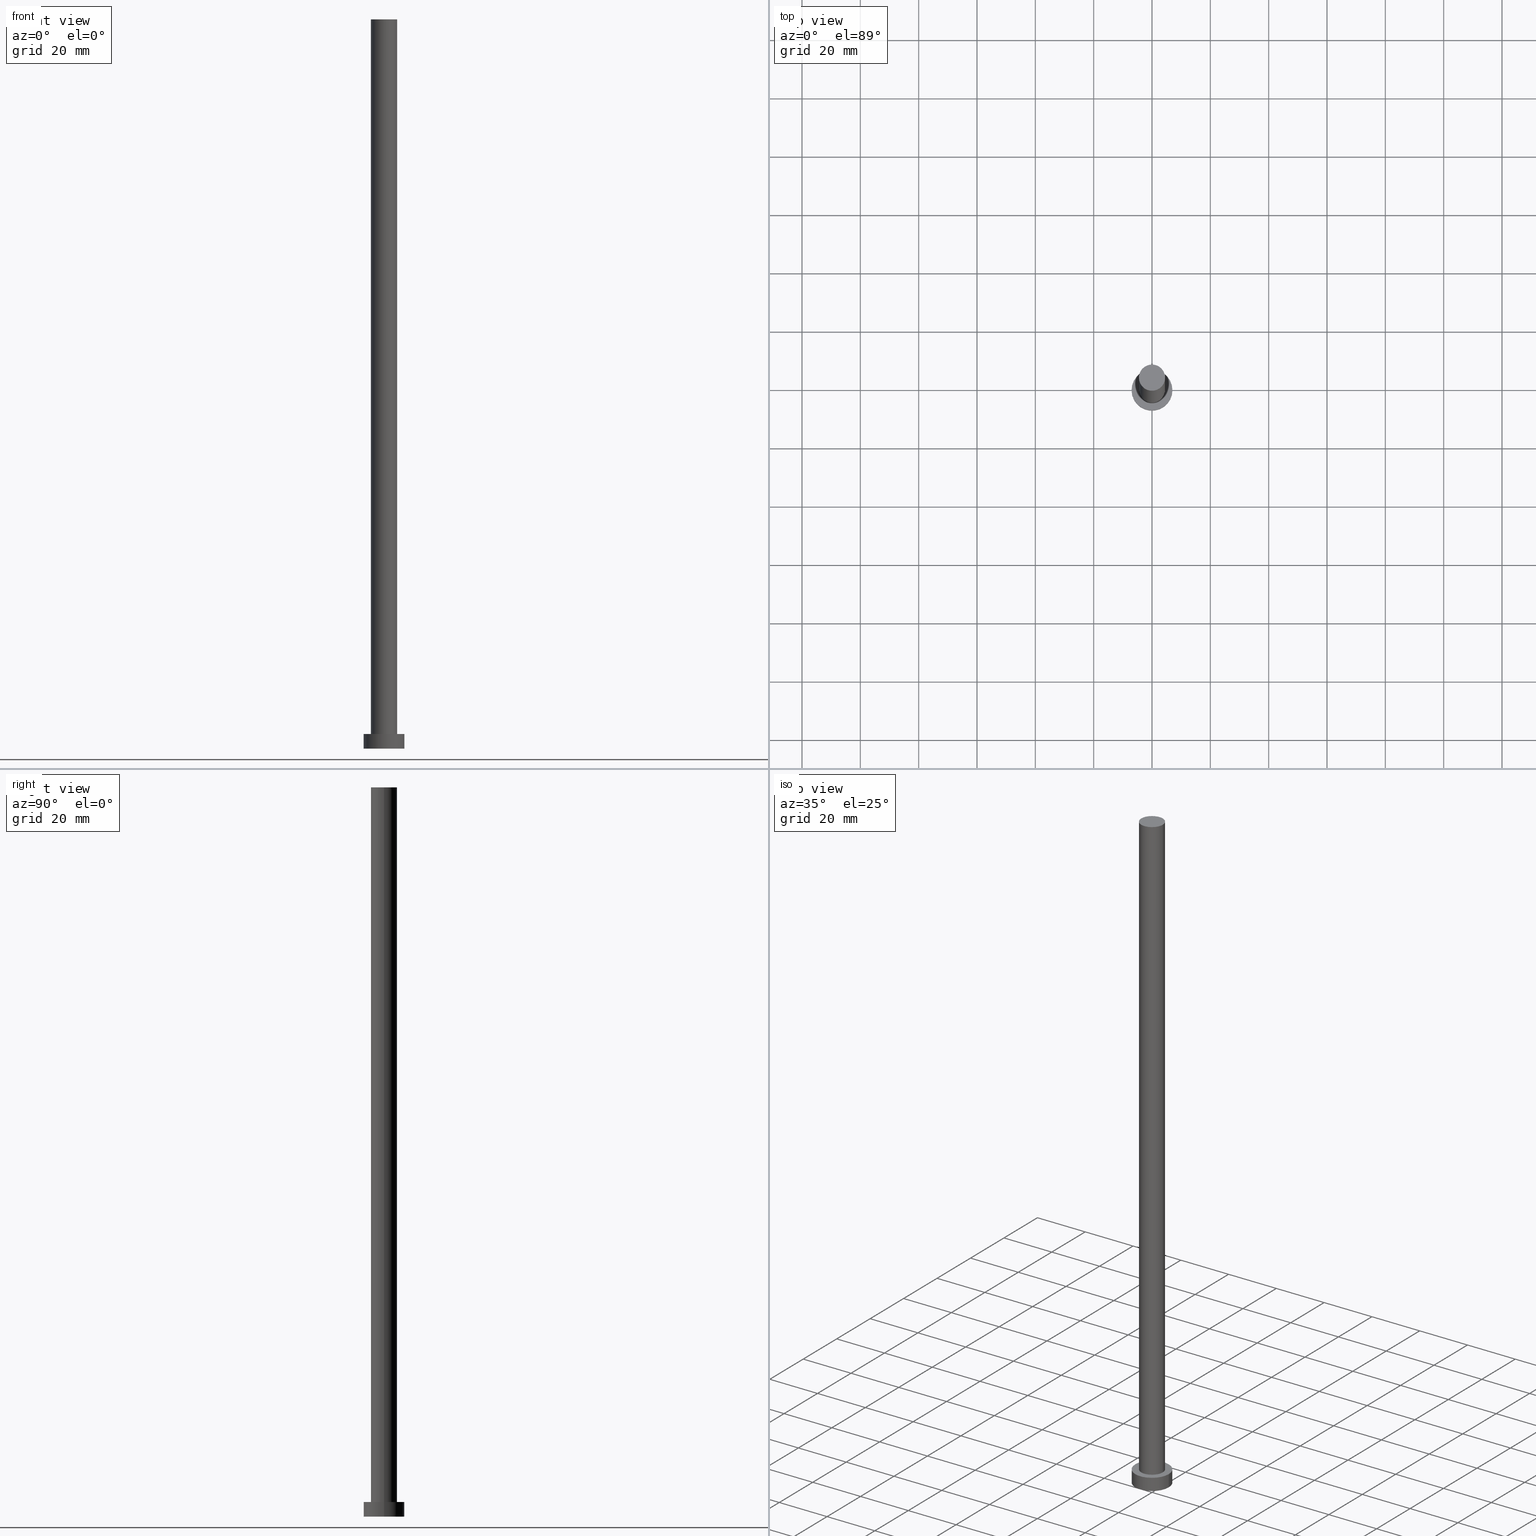
[diagram: canonical four-view strip — front | top / right | iso, engineering-drawing reading convention]
A machine part, canonical four-view strip (front | top / right | iso — engineering-drawing reading convention). The complete STEP part file that produces these views, byte-faithful:
ISO-10303-21;
HEADER;
FILE_DESCRIPTION (( 'STEP AP203' ),
    '1' );
FILE_NAME ('e361.STEP',
    '2023-02-13T10:50:36',
    ( '' ),
    ( '' ),
    'SwSTEP 2.0',
    'SolidWorks 2019',
    '' );
FILE_SCHEMA (( 'CONFIG_CONTROL_DESIGN' ));
ENDSEC;

DATA;
#1 = EDGE_CURVE ( 'NONE', #84, #205, #209, .T. ) ;
#2 = CARTESIAN_POINT ( 'NONE',  ( 0.000000000000000000, 0.000000000000000000, 5.000000000000000000 ) ) ;
#3 = DIRECTION ( 'NONE',  ( 0.000000000000000000, 0.000000000000000000, 1.000000000000000000 ) ) ;
#4 = FACE_OUTER_BOUND ( 'NONE', #23, .T. ) ;
#5 = AXIS2_PLACEMENT_3D ( 'NONE', #83, #3, #95 ) ;
#6 = APPROVAL_PERSON_ORGANIZATION ( #78, #40, #36 ) ;
#7 = AXIS2_PLACEMENT_3D ( 'NONE', #15, #93, #167 ) ;
#8 = AXIS2_PLACEMENT_3D ( 'NONE', #142, #166, #241 ) ;
#9 = VECTOR ( 'NONE', #192, 1000.000000000000000 ) ;
#10 = AXIS2_PLACEMENT_3D ( 'NONE', #251, #229, #58 ) ;
#11 = PERSON_AND_ORGANIZATION ( #144, #152 ) ;
#12 = CYLINDRICAL_SURFACE ( 'NONE', #8, 7.000000000000000000 ) ;
#13 = CALENDAR_DATE ( 2023, 13, 2 ) ;
#14 = ADVANCED_FACE ( 'NONE', ( #208 ), #112, .T. ) ;
#15 = CARTESIAN_POINT ( 'NONE',  ( 0.000000000000000000, 0.000000000000000000, 0.000000000000000000 ) ) ;
#16 = AXIS2_PLACEMENT_3D ( 'NONE', #47, #227, #128 ) ;
#17 = APPLICATION_CONTEXT ( 'configuration controlled 3d designs of mechanical parts and assemblies' ) ;
#18 = DATE_AND_TIME ( #76, #214 ) ;
#19 = CYLINDRICAL_SURFACE ( 'NONE', #10, 7.000000000000000000 ) ;
#20 = PERSON_AND_ORGANIZATION_ROLE ( 'design_supplier' ) ;
#21 = LINE ( 'NONE', #111, #238 ) ;
#22 = DIRECTION ( 'NONE',  ( -0.000000000000000000, -0.000000000000000000, -1.000000000000000000 ) ) ;
#23 = EDGE_LOOP ( 'NONE', ( #124, #182 ) ) ;
#24 = CARTESIAN_POINT ( 'NONE',  ( -4.500000000000000888, 0.000000000000000000, 250.0000000000000000 ) ) ;
#25 = CC_DESIGN_PERSON_AND_ORGANIZATION_ASSIGNMENT ( #56, #197, ( #104 ) ) ;
#26 = DATE_AND_TIME ( #91, #145 ) ;
#27 = AXIS2_PLACEMENT_3D ( 'NONE', #134, #211, #253 ) ;
#28 = APPROVAL_PERSON_ORGANIZATION ( #49, #121, #73 ) ;
#29 = APPROVAL_DATE_TIME ( #198, #110 ) ;
#30 = VERTEX_POINT ( 'NONE', #108 ) ;
#31 = APPROVAL_STATUS ( 'not_yet_approved' ) ;
#32 = AXIS2_PLACEMENT_3D ( 'NONE', #137, #207, #39 ) ;
#33 = FACE_OUTER_BOUND ( 'NONE', #150, .T. ) ;
#34 = CYLINDRICAL_SURFACE ( 'NONE', #149, 4.500000000000000888 ) ;
#35 = CARTESIAN_POINT ( 'NONE',  ( 0.000000000000000000, 0.000000000000000000, 250.0000000000000000 ) ) ;
#36 = APPROVAL_ROLE ( '' ) ;
#37 = VERTEX_POINT ( 'NONE', #186 ) ;
#38 = PERSON_AND_ORGANIZATION_ROLE ( 'creator' ) ;
#39 = DIRECTION ( 'NONE',  ( 1.000000000000000000, 0.000000000000000000, 0.000000000000000000 ) ) ;
#40 = APPROVAL ( #31, 'NEUR�EN�' ) ;
#41 = ADVANCED_BREP_SHAPE_REPRESENTATION ( 'e361', ( #88, #16 ), #42 ) ;
#42 =( GEOMETRIC_REPRESENTATION_CONTEXT ( 3 ) GLOBAL_UNCERTAINTY_ASSIGNED_CONTEXT ( ( #52 ) ) GLOBAL_UNIT_ASSIGNED_CONTEXT ( ( #156, #135, #222 ) ) REPRESENTATION_CONTEXT ( 'NONE', 'WORKASPACE' ) );
#43 = EDGE_LOOP ( 'NONE', ( #183, #216, #69, #158 ) ) ;
#44 = ORIENTED_EDGE ( 'NONE', *, *, #1, .T. ) ;
#45 = EDGE_CURVE ( 'NONE', #205, #200, #221, .T. ) ;
#46 = SECURITY_CLASSIFICATION_LEVEL ( 'unclassified' ) ;
#47 = CARTESIAN_POINT ( 'NONE',  ( 0.000000000000000000, 0.000000000000000000, 0.000000000000000000 ) ) ;
#48 = CARTESIAN_POINT ( 'NONE',  ( 7.000000000000000000, 8.572527594031473190E-16, 5.000000000000000000 ) ) ;
#49 = PERSON_AND_ORGANIZATION ( #144, #152 ) ;
#50 = DIRECTION ( 'NONE',  ( -1.000000000000000000, 0.000000000000000000, 0.000000000000000000 ) ) ;
#51 = APPLICATION_PROTOCOL_DEFINITION ( 'international standard', 'config_control_design', 1994, #161 ) ;
#52 = UNCERTAINTY_MEASURE_WITH_UNIT (LENGTH_MEASURE( 1.000000000000000082E-05 ), #156, 'distance_accuracy_value', 'NONE');
#53 = CARTESIAN_POINT ( 'NONE',  ( 0.000000000000000000, 0.000000000000000000, 250.0000000000000000 ) ) ;
#54 = VECTOR ( 'NONE', #136, 1000.000000000000000 ) ;
#55 = DATE_TIME_ROLE ( 'creation_date' ) ;
#56 = PERSON_AND_ORGANIZATION ( #144, #152 ) ;
#57 = ADVANCED_FACE ( 'NONE', ( #255, #4 ), #139, .T. ) ;
#58 = DIRECTION ( 'NONE',  ( -1.000000000000000000, 0.000000000000000000, 0.000000000000000000 ) ) ;
#59 = CC_DESIGN_PERSON_AND_ORGANIZATION_ASSIGNMENT ( #191, #20, ( #67 ) ) ;
#60 = ORIENTED_EDGE ( 'NONE', *, *, #176, .F. ) ;
#61 = CARTESIAN_POINT ( 'NONE',  ( 0.000000000000000000, 0.000000000000000000, 0.000000000000000000 ) ) ;
#62 = AXIS2_PLACEMENT_3D ( 'NONE', #85, #239, #237 ) ;
#63 = SHAPE_DEFINITION_REPRESENTATION ( #160, #41 ) ;
#64 = ORIENTED_EDGE ( 'NONE', *, *, #223, .T. ) ;
#65 = ORIENTED_EDGE ( 'NONE', *, *, #176, .T. ) ;
#66 = PLANE ( 'NONE',  #103 ) ;
#67 = PRODUCT_DEFINITION_FORMATION_WITH_SPECIFIED_SOURCE ( 'LIBOVOLN�', '', #104, .NOT_KNOWN. ) ;
#68 = DIRECTION ( 'NONE',  ( 0.000000000000000000, 0.000000000000000000, 1.000000000000000000 ) ) ;
#69 = ORIENTED_EDGE ( 'NONE', *, *, #173, .T. ) ;
#70 = DIRECTION ( 'NONE',  ( 1.000000000000000000, 0.000000000000000000, -0.000000000000000000 ) ) ;
#71 = VERTEX_POINT ( 'NONE', #252 ) ;
#72 = VECTOR ( 'NONE', #22, 1000.000000000000000 ) ;
#73 = APPROVAL_ROLE ( '' ) ;
#74 = AXIS2_PLACEMENT_3D ( 'NONE', #61, #82, #159 ) ;
#75 = DIRECTION ( 'NONE',  ( -0.000000000000000000, -0.000000000000000000, -1.000000000000000000 ) ) ;
#76 = CALENDAR_DATE ( 2023, 13, 2 ) ;
#77 = EDGE_CURVE ( 'NONE', #205, #84, #133, .T. ) ;
#78 = PERSON_AND_ORGANIZATION ( #144, #152 ) ;
#79 = LINE ( 'NONE', #157, #54 ) ;
#80 = AXIS2_PLACEMENT_3D ( 'NONE', #2, #213, #194 ) ;
#81 = ORIENTED_EDGE ( 'NONE', *, *, #190, .T. ) ;
#82 = DIRECTION ( 'NONE',  ( 0.000000000000000000, 0.000000000000000000, 1.000000000000000000 ) ) ;
#83 = CARTESIAN_POINT ( 'NONE',  ( 0.000000000000000000, 0.000000000000000000, 5.000000000000000000 ) ) ;
#84 = VERTEX_POINT ( 'NONE', #24 ) ;
#85 = CARTESIAN_POINT ( 'NONE',  ( 0.000000000000000000, 0.000000000000000000, 250.0000000000000000 ) ) ;
#86 = FACE_OUTER_BOUND ( 'NONE', #212, .T. ) ;
#87 = ADVANCED_FACE ( 'NONE', ( #86 ), #66, .T. ) ;
#88 = MANIFOLD_SOLID_BREP ( 'P�idat vysunut�m3', #177 ) ;
#89 = CIRCLE ( 'NONE', #80, 7.000000000000000000 ) ;
#90 = DATE_AND_TIME ( #13, #175 ) ;
#91 = CALENDAR_DATE ( 2023, 13, 2 ) ;
#92 = DIRECTION ( 'NONE',  ( -0.000000000000000000, -0.000000000000000000, -1.000000000000000000 ) ) ;
#93 = DIRECTION ( 'NONE',  ( 0.000000000000000000, 0.000000000000000000, 1.000000000000000000 ) ) ;
#94 = ADVANCED_FACE ( 'NONE', ( #126 ), #12, .T. ) ;
#95 = DIRECTION ( 'NONE',  ( 1.000000000000000000, 0.000000000000000000, -0.000000000000000000 ) ) ;
#96 = PERSON_AND_ORGANIZATION ( #144, #152 ) ;
#97 = DIRECTION ( 'NONE',  ( 0.000000000000000000, 0.000000000000000000, 1.000000000000000000 ) ) ;
#98 = DIRECTION ( 'NONE',  ( 1.000000000000000000, 0.000000000000000000, 0.000000000000000000 ) ) ;
#99 = FACE_OUTER_BOUND ( 'NONE', #195, .T. ) ;
#100 = EDGE_LOOP ( 'NONE', ( #60, #115 ) ) ;
#101 = PRODUCT_DEFINITION ( 'NEZN�M�', '', #67, #249 ) ;
#102 = ORIENTED_EDGE ( 'NONE', *, *, #190, .F. ) ;
#103 = AXIS2_PLACEMENT_3D ( 'NONE', #218, #68, #70 ) ;
#104 = PRODUCT ( 'e361', 'e361', '', ( #148 ) ) ;
#105 = PERSON_AND_ORGANIZATION_ROLE ( 'classification_officer' ) ;
#106 = AXIS2_PLACEMENT_3D ( 'NONE', #244, #130, #98 ) ;
#107 = PLANE ( 'NONE',  #7 ) ;
#108 = CARTESIAN_POINT ( 'NONE',  ( -7.000000000000000000, 0.000000000000000000, 5.000000000000000000 ) ) ;
#109 = CIRCLE ( 'NONE', #116, 7.000000000000000000 ) ;
#110 = APPROVAL ( #181, 'NEUR�EN�' ) ;
#111 = CARTESIAN_POINT ( 'NONE',  ( 7.000000000000000000, 8.572527594031473190E-16, 5.000000000000000000 ) ) ;
#112 = CYLINDRICAL_SURFACE ( 'NONE', #163, 4.500000000000000888 ) ;
#113 = PERSON_AND_ORGANIZATION ( #144, #152 ) ;
#114 = LINE ( 'NONE', #174, #9 ) ;
#115 = ORIENTED_EDGE ( 'NONE', *, *, #204, .F. ) ;
#116 = AXIS2_PLACEMENT_3D ( 'NONE', #162, #97, #118 ) ;
#117 = CIRCLE ( 'NONE', #74, 7.000000000000000000 ) ;
#118 = DIRECTION ( 'NONE',  ( 1.000000000000000000, 0.000000000000000000, 0.000000000000000000 ) ) ;
#119 = VERTEX_POINT ( 'NONE', #48 ) ;
#120 = ADVANCED_FACE ( 'NONE', ( #33 ), #34, .T. ) ;
#121 = APPROVAL ( #184, 'NEUR�EN�' ) ;
#122 = ORIENTED_EDGE ( 'NONE', *, *, #77, .T. ) ;
#123 = LOCAL_TIME ( 11, 50, 36.00000000000000000, #247 ) ;
#124 = ORIENTED_EDGE ( 'NONE', *, *, #151, .T. ) ;
#125 = COORDINATED_UNIVERSAL_TIME_OFFSET ( 1, 0, .AHEAD. ) ;
#126 = FACE_OUTER_BOUND ( 'NONE', #242, .T. ) ;
#127 = CC_DESIGN_PERSON_AND_ORGANIZATION_ASSIGNMENT ( #11, #250, ( #101 ) ) ;
#128 = DIRECTION ( 'NONE',  ( 1.000000000000000000, 0.000000000000000000, 0.000000000000000000 ) ) ;
#129 = DATE_AND_TIME ( #220, #164 ) ;
#130 = DIRECTION ( 'NONE',  ( 0.000000000000000000, 0.000000000000000000, 1.000000000000000000 ) ) ;
#131 = VERTEX_POINT ( 'NONE', #199 ) ;
#132 = APPROVAL_DATE_TIME ( #90, #40 ) ;
#133 = CIRCLE ( 'NONE', #62, 4.500000000000000888 ) ;
#134 = CARTESIAN_POINT ( 'NONE',  ( 0.000000000000000000, 0.000000000000000000, 5.000000000000000000 ) ) ;
#135 =( NAMED_UNIT ( * ) PLANE_ANGLE_UNIT ( ) SI_UNIT ( $, .RADIAN. ) );
#136 = DIRECTION ( 'NONE',  ( -0.000000000000000000, -0.000000000000000000, -1.000000000000000000 ) ) ;
#137 = CARTESIAN_POINT ( 'NONE',  ( 0.000000000000000000, 0.000000000000000000, 5.000000000000000000 ) ) ;
#138 = CC_DESIGN_SECURITY_CLASSIFICATION ( #230, ( #67 ) ) ;
#139 = PLANE ( 'NONE',  #5 ) ;
#140 = ORIENTED_EDGE ( 'NONE', *, *, #223, .F. ) ;
#141 = ADVANCED_FACE ( 'NONE', ( #248 ), #107, .F. ) ;
#142 = CARTESIAN_POINT ( 'NONE',  ( 0.000000000000000000, 0.000000000000000000, 5.000000000000000000 ) ) ;
#143 = CIRCLE ( 'NONE', #106, 7.000000000000000000 ) ;
#144 = PERSON ( 'NEUR�EN�', 'NEUR�EN�', 'NEUR�EN�', ('NEUR�EN�'), ('NEUR�EN�'), ('NEUR�EN�') ) ;
#145 = LOCAL_TIME ( 11, 50, 36.00000000000000000, #125 ) ;
#146 = COORDINATED_UNIVERSAL_TIME_OFFSET ( 1, 0, .AHEAD. ) ;
#147 = CC_DESIGN_DATE_AND_TIME_ASSIGNMENT ( #18, #55, ( #101 ) ) ;
#148 = MECHANICAL_CONTEXT ( 'NONE', #161, 'mechanical' ) ;
#149 = AXIS2_PLACEMENT_3D ( 'NONE', #53, #92, #50 ) ;
#150 = EDGE_LOOP ( 'NONE', ( #210, #171, #215, #234 ) ) ;
#151 = EDGE_CURVE ( 'NONE', #30, #119, #143, .T. ) ;
#152 = ORGANIZATION ( 'NEUR�EN�', 'NEUR�EN�', '' ) ;
#153 = COORDINATED_UNIVERSAL_TIME_OFFSET ( 1, 0, .AHEAD. ) ;
#154 = DIRECTION ( 'NONE',  ( -1.000000000000000000, 0.000000000000000000, 0.000000000000000000 ) ) ;
#155 = CARTESIAN_POINT ( 'NONE',  ( 0.000000000000000000, 0.000000000000000000, 250.0000000000000000 ) ) ;
#156 =( LENGTH_UNIT ( ) NAMED_UNIT ( * ) SI_UNIT ( .MILLI., .METRE. ) );
#157 = CARTESIAN_POINT ( 'NONE',  ( -4.500000000000000888, 0.000000000000000000, 250.0000000000000000 ) ) ;
#158 = ORIENTED_EDGE ( 'NONE', *, *, #246, .F. ) ;
#159 = DIRECTION ( 'NONE',  ( 1.000000000000000000, 0.000000000000000000, 0.000000000000000000 ) ) ;
#160 = PRODUCT_DEFINITION_SHAPE ( 'NONE', 'NONE',  #101 ) ;
#161 = APPLICATION_CONTEXT ( 'configuration controlled 3d designs of mechanical parts and assemblies' ) ;
#162 = CARTESIAN_POINT ( 'NONE',  ( 0.000000000000000000, 0.000000000000000000, 0.000000000000000000 ) ) ;
#163 = AXIS2_PLACEMENT_3D ( 'NONE', #35, #75, #154 ) ;
#164 = LOCAL_TIME ( 11, 50, 36.00000000000000000, #153 ) ;
#165 = CALENDAR_DATE ( 2023, 13, 2 ) ;
#166 = DIRECTION ( 'NONE',  ( -0.000000000000000000, -0.000000000000000000, -1.000000000000000000 ) ) ;
#167 = DIRECTION ( 'NONE',  ( 1.000000000000000000, 0.000000000000000000, -0.000000000000000000 ) ) ;
#168 = DIRECTION ( 'NONE',  ( 1.000000000000000000, 0.000000000000000000, 0.000000000000000000 ) ) ;
#169 = EDGE_LOOP ( 'NONE', ( #196, #178 ) ) ;
#170 = CC_DESIGN_DATE_AND_TIME_ASSIGNMENT ( #26, #240, ( #230 ) ) ;
#171 = ORIENTED_EDGE ( 'NONE', *, *, #1, .F. ) ;
#172 = PERSON_AND_ORGANIZATION ( #144, #152 ) ;
#173 = EDGE_CURVE ( 'NONE', #200, #37, #232, .T. ) ;
#174 = CARTESIAN_POINT ( 'NONE',  ( -7.000000000000000000, 0.000000000000000000, 5.000000000000000000 ) ) ;
#175 = LOCAL_TIME ( 11, 50, 36.00000000000000000, #228 ) ;
#176 = EDGE_CURVE ( 'NONE', #71, #131, #109, .T. ) ;
#177 = CLOSED_SHELL ( 'NONE', ( #14, #233, #94, #57, #141, #120, #87 ) ) ;
#178 = ORIENTED_EDGE ( 'NONE', *, *, #173, .F. ) ;
#179 = PRODUCT_RELATED_PRODUCT_CATEGORY ( 'detail', '', ( #104 ) ) ;
#180 = APPROVAL_PERSON_ORGANIZATION ( #172, #110, #188 ) ;
#181 = APPROVAL_STATUS ( 'not_yet_approved' ) ;
#182 = ORIENTED_EDGE ( 'NONE', *, *, #203, .T. ) ;
#183 = ORIENTED_EDGE ( 'NONE', *, *, #77, .F. ) ;
#184 = APPROVAL_STATUS ( 'not_yet_approved' ) ;
#185 = CC_DESIGN_PERSON_AND_ORGANIZATION_ASSIGNMENT ( #113, #38, ( #67 ) ) ;
#186 = CARTESIAN_POINT ( 'NONE',  ( -4.500000000000000888, 0.000000000000000000, 5.000000000000000000 ) ) ;
#187 = AXIS2_PLACEMENT_3D ( 'NONE', #155, #226, #168 ) ;
#188 = APPROVAL_ROLE ( '' ) ;
#189 = DIRECTION ( 'NONE',  ( -0.000000000000000000, -0.000000000000000000, -1.000000000000000000 ) ) ;
#190 = EDGE_CURVE ( 'NONE', #30, #71, #114, .T. ) ;
#191 = PERSON_AND_ORGANIZATION ( #144, #152 ) ;
#192 = DIRECTION ( 'NONE',  ( -0.000000000000000000, -0.000000000000000000, -1.000000000000000000 ) ) ;
#193 = CC_DESIGN_APPROVAL ( #40, ( #67 ) ) ;
#194 = DIRECTION ( 'NONE',  ( 1.000000000000000000, 0.000000000000000000, 0.000000000000000000 ) ) ;
#195 = EDGE_LOOP ( 'NONE', ( #245, #64, #235, #102 ) ) ;
#196 = ORIENTED_EDGE ( 'NONE', *, *, #236, .F. ) ;
#197 = PERSON_AND_ORGANIZATION_ROLE ( 'design_owner' ) ;
#198 = DATE_AND_TIME ( #165, #123 ) ;
#199 = CARTESIAN_POINT ( 'NONE',  ( 7.000000000000000000, 8.572527594031473190E-16, 0.000000000000000000 ) ) ;
#200 = VERTEX_POINT ( 'NONE', #254 ) ;
#201 = APPROVAL_DATE_TIME ( #129, #121 ) ;
#202 = CARTESIAN_POINT ( 'NONE',  ( 4.500000000000000888, 5.510910596163089556E-16, 250.0000000000000000 ) ) ;
#203 = EDGE_CURVE ( 'NONE', #119, #30, #89, .T. ) ;
#204 = EDGE_CURVE ( 'NONE', #131, #71, #117, .T. ) ;
#205 = VERTEX_POINT ( 'NONE', #231 ) ;
#206 = APPLICATION_PROTOCOL_DEFINITION ( 'international standard', 'config_control_design', 1994, #17 ) ;
#207 = DIRECTION ( 'NONE',  ( 0.000000000000000000, 0.000000000000000000, 1.000000000000000000 ) ) ;
#208 = FACE_OUTER_BOUND ( 'NONE', #43, .T. ) ;
#209 = CIRCLE ( 'NONE', #187, 4.500000000000000888 ) ;
#210 = ORIENTED_EDGE ( 'NONE', *, *, #45, .F. ) ;
#211 = DIRECTION ( 'NONE',  ( 0.000000000000000000, 0.000000000000000000, 1.000000000000000000 ) ) ;
#212 = EDGE_LOOP ( 'NONE', ( #44, #122 ) ) ;
#213 = DIRECTION ( 'NONE',  ( 0.000000000000000000, 0.000000000000000000, 1.000000000000000000 ) ) ;
#214 = LOCAL_TIME ( 11, 50, 36.00000000000000000, #146 ) ;
#215 = ORIENTED_EDGE ( 'NONE', *, *, #246, .T. ) ;
#216 = ORIENTED_EDGE ( 'NONE', *, *, #45, .T. ) ;
#217 = CC_DESIGN_APPROVAL ( #121, ( #230 ) ) ;
#218 = CARTESIAN_POINT ( 'NONE',  ( 0.000000000000000000, 0.000000000000000000, 250.0000000000000000 ) ) ;
#219 = CC_DESIGN_APPROVAL ( #110, ( #101 ) ) ;
#220 = CALENDAR_DATE ( 2023, 13, 2 ) ;
#221 = LINE ( 'NONE', #202, #72 ) ;
#222 =( NAMED_UNIT ( * ) SI_UNIT ( $, .STERADIAN. ) SOLID_ANGLE_UNIT ( ) );
#223 = EDGE_CURVE ( 'NONE', #119, #131, #21, .T. ) ;
#224 = CC_DESIGN_PERSON_AND_ORGANIZATION_ASSIGNMENT ( #96, #105, ( #230 ) ) ;
#225 = CIRCLE ( 'NONE', #27, 4.500000000000000888 ) ;
#226 = DIRECTION ( 'NONE',  ( 0.000000000000000000, 0.000000000000000000, 1.000000000000000000 ) ) ;
#227 = DIRECTION ( 'NONE',  ( 0.000000000000000000, 0.000000000000000000, 1.000000000000000000 ) ) ;
#228 = COORDINATED_UNIVERSAL_TIME_OFFSET ( 1, 0, .AHEAD. ) ;
#229 = DIRECTION ( 'NONE',  ( -0.000000000000000000, -0.000000000000000000, -1.000000000000000000 ) ) ;
#230 = SECURITY_CLASSIFICATION ( '', '', #46 ) ;
#231 = CARTESIAN_POINT ( 'NONE',  ( 4.500000000000000888, 5.510910596163089556E-16, 250.0000000000000000 ) ) ;
#232 = CIRCLE ( 'NONE', #32, 4.500000000000000888 ) ;
#233 = ADVANCED_FACE ( 'NONE', ( #99 ), #19, .T. ) ;
#234 = ORIENTED_EDGE ( 'NONE', *, *, #236, .T. ) ;
#235 = ORIENTED_EDGE ( 'NONE', *, *, #204, .T. ) ;
#236 = EDGE_CURVE ( 'NONE', #37, #200, #225, .T. ) ;
#237 = DIRECTION ( 'NONE',  ( 1.000000000000000000, 0.000000000000000000, 0.000000000000000000 ) ) ;
#238 = VECTOR ( 'NONE', #189, 1000.000000000000000 ) ;
#239 = DIRECTION ( 'NONE',  ( 0.000000000000000000, 0.000000000000000000, 1.000000000000000000 ) ) ;
#240 = DATE_TIME_ROLE ( 'classification_date' ) ;
#241 = DIRECTION ( 'NONE',  ( -1.000000000000000000, 0.000000000000000000, 0.000000000000000000 ) ) ;
#242 = EDGE_LOOP ( 'NONE', ( #140, #243, #81, #65 ) ) ;
#243 = ORIENTED_EDGE ( 'NONE', *, *, #151, .F. ) ;
#244 = CARTESIAN_POINT ( 'NONE',  ( 0.000000000000000000, 0.000000000000000000, 5.000000000000000000 ) ) ;
#245 = ORIENTED_EDGE ( 'NONE', *, *, #203, .F. ) ;
#246 = EDGE_CURVE ( 'NONE', #84, #37, #79, .T. ) ;
#247 = COORDINATED_UNIVERSAL_TIME_OFFSET ( 1, 0, .AHEAD. ) ;
#248 = FACE_OUTER_BOUND ( 'NONE', #100, .T. ) ;
#249 = DESIGN_CONTEXT ( 'detailed design', #17, 'design' ) ;
#250 = PERSON_AND_ORGANIZATION_ROLE ( 'creator' ) ;
#251 = CARTESIAN_POINT ( 'NONE',  ( 0.000000000000000000, 0.000000000000000000, 5.000000000000000000 ) ) ;
#252 = CARTESIAN_POINT ( 'NONE',  ( -7.000000000000000000, 0.000000000000000000, 0.000000000000000000 ) ) ;
#253 = DIRECTION ( 'NONE',  ( 1.000000000000000000, 0.000000000000000000, 0.000000000000000000 ) ) ;
#254 = CARTESIAN_POINT ( 'NONE',  ( 4.500000000000000888, 5.510910596163089556E-16, 5.000000000000000000 ) ) ;
#255 = FACE_BOUND ( 'NONE', #169, .T. ) ;
ENDSEC;
END-ISO-10303-21;
